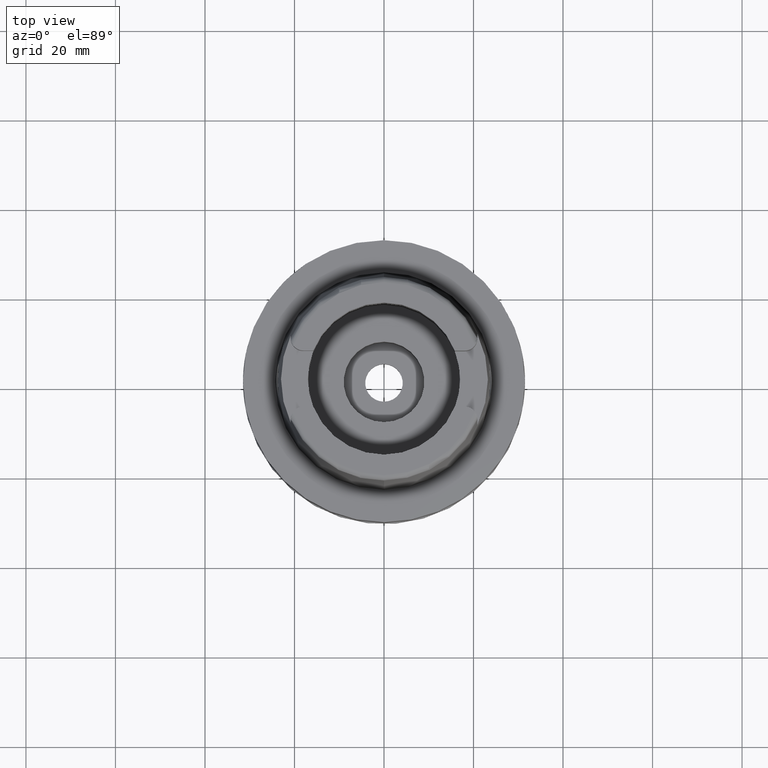
[diagram: clean part render]
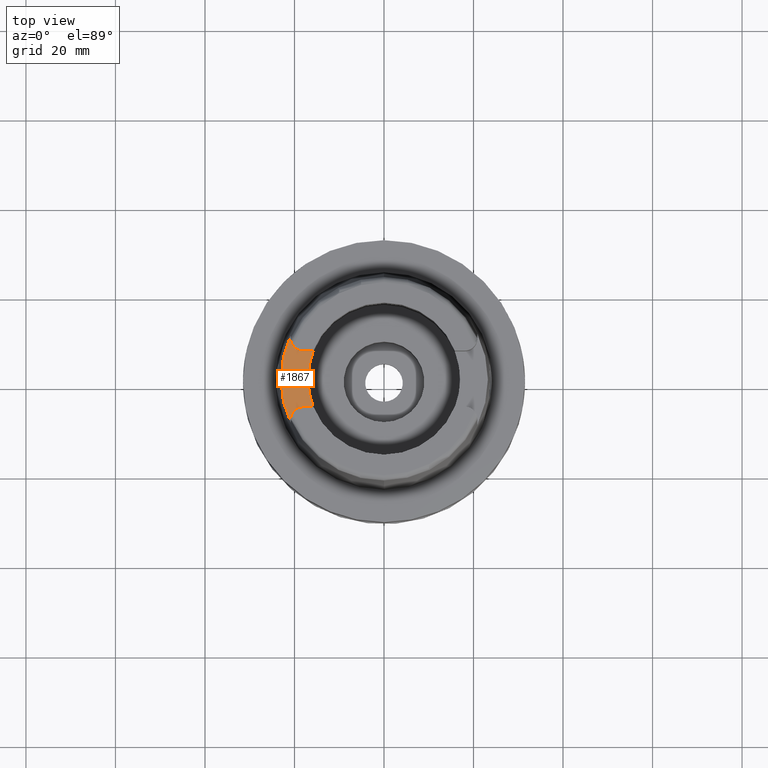
[diagram: same view with one face highlighted and labeled with its STEP entity id]
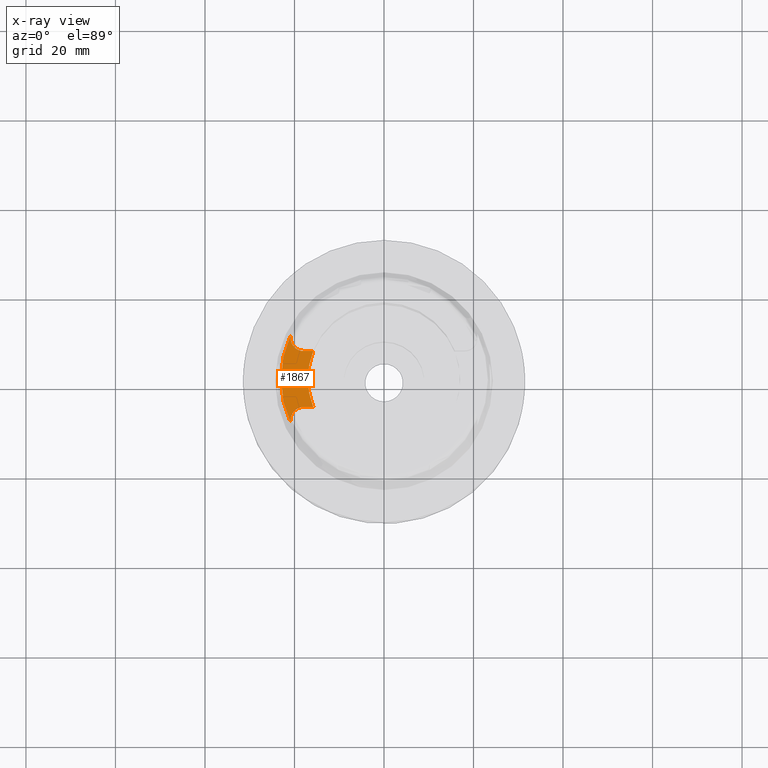
[diagram: x-ray of the same camera — body ghosted, the highlighted face saturated]
A machine part, top view. The second image highlights one B-rep face of the part: STEP entity #1867.
The next image is the same camera in x-ray: the body ghosted, the highlighted face saturated — about 0% of this face is hidden behind the body in this view.
In plain terms, the highlighted planar face has unit normal (0, 0, 1).
Its self-contained STEP definition (entity closure, byte-faithful):
#35 = DIRECTION ( 'NONE',  ( -1.000000000000000000, 8.644330667353000255E-14, 0.0000000000000000000 ) ) ;
#202 = VERTEX_POINT ( 'NONE', #2320 ) ;
#209 = VERTEX_POINT ( 'NONE', #5324 ) ;
#225 = CIRCLE ( 'NONE', #756, 23.01499170873999134 ) ;
#637 = LINE ( 'NONE', #1538, #3032 ) ;
#644 = DIRECTION ( 'NONE',  ( 0.0000000000000000000, 0.0000000000000000000, 1.000000000000000000 ) ) ;
#649 = ORIENTED_EDGE ( 'NONE', *, *, #2867, .F. ) ;
#651 = DIRECTION ( 'NONE',  ( 0.0000000000000000000, 1.000000000000000000, 0.0000000000000000000 ) ) ;
#743 = CARTESIAN_POINT ( 'NONE',  ( -15.80149043602999903, -6.270000000000000462, 26.00000000000000000 ) ) ;
#756 = AXIS2_PLACEMENT_3D ( 'NONE', #845, #3856, #1365 ) ;
#761 = CIRCLE ( 'NONE', #1112, 17.00000000000000000 ) ;
#845 = CARTESIAN_POINT ( 'NONE',  ( 0.0000000000000000000, 0.0000000000000000000, 26.00000000000000000 ) ) ;
#1005 = ORIENTED_EDGE ( 'NONE', *, *, #5099, .F. ) ;
#1078 = DIRECTION ( 'NONE',  ( -1.000000000000000000, 0.0000000000000000000, 0.0000000000000000000 ) ) ;
#1112 = AXIS2_PLACEMENT_3D ( 'NONE', #1495, #644, #4896 ) ;
#1306 = VECTOR ( 'NONE', #2836, 1000.000000000000000 ) ;
#1317 = AXIS2_PLACEMENT_3D ( 'NONE', #2329, #3140, #1078 ) ;
#1365 = DIRECTION ( 'NONE',  ( -0.9068002397791221636, -0.4215605829967106200, 0.0000000000000000000 ) ) ;
#1439 = ORIENTED_EDGE ( 'NONE', *, *, #4825, .F. ) ;
#1481 = CARTESIAN_POINT ( 'NONE',  ( -20.87000000000000099, 9.150000000000000355, 26.00000000000000000 ) ) ;
#1495 = CARTESIAN_POINT ( 'NONE',  ( 0.0000000000000000000, 0.0000000000000000000, 26.00000000000000000 ) ) ;
#1538 = CARTESIAN_POINT ( 'NONE',  ( -17.98999999999999844, 6.270000000000000462, 26.00000000000000000 ) ) ;
#1615 = LINE ( 'NONE', #4990, #1306 ) ;
#1651 = CARTESIAN_POINT ( 'NONE',  ( 0.0000000000000000000, 0.0000000000000000000, 26.00000000000000000 ) ) ;
#1698 = DIRECTION ( 'NONE',  ( 1.239823711411039370E-06, -0.9999999999992315036, -3.860130687255118314E-14 ) ) ;
#1847 = ORIENTED_EDGE ( 'NONE', *, *, #2172, .F. ) ;
#1867 = ADVANCED_FACE ( 'NONE', ( #5057 ), #4086, .T. ) ;
#1922 = CIRCLE ( 'NONE', #3413, 2.880000000000000782 ) ;
#1924 = VERTEX_POINT ( 'NONE', #4537 ) ;
#1991 = DIRECTION ( 'NONE',  ( 1.000000000000000000, 0.0000000000000000000, 0.0000000000000000000 ) ) ;
#2172 = EDGE_CURVE ( 'NONE', #202, #209, #637, .T. ) ;
#2267 = VERTEX_POINT ( 'NONE', #743 ) ;
#2320 = CARTESIAN_POINT ( 'NONE',  ( -17.98999999999999844, 6.270000000000000462, 26.00000000000000000 ) ) ;
#2329 = CARTESIAN_POINT ( 'NONE',  ( -17.98999999999999844, 9.150000000000000355, 26.00000000000000000 ) ) ;
#2379 = VERTEX_POINT ( 'NONE', #4533 ) ;
#2417 = ORIENTED_EDGE ( 'NONE', *, *, #3837, .F. ) ;
#2424 = EDGE_CURVE ( 'NONE', #2379, #4493, #225, .T. ) ;
#2468 = EDGE_CURVE ( 'NONE', #3335, #2379, #2996, .T. ) ;
#2540 = VERTEX_POINT ( 'NONE', #1481 ) ;
#2566 = CARTESIAN_POINT ( 'NONE',  ( -15.80149043602999903, -6.270000000000000462, 26.00000000000000000 ) ) ;
#2708 = EDGE_CURVE ( 'NONE', #2267, #1924, #3819, .T. ) ;
#2741 = CIRCLE ( 'NONE', #1317, 2.880000000000000782 ) ;
#2836 = DIRECTION ( 'NONE',  ( 5.336846542900780513E-06, -0.9999999999857590582, 3.860251871643844625E-14 ) ) ;
#2867 = EDGE_CURVE ( 'NONE', #209, #2267, #761, .T. ) ;
#2870 = VECTOR ( 'NONE', #1698, 999.9999999999998863 ) ;
#2996 = LINE ( 'NONE', #4301, #2870 ) ;
#3032 = VECTOR ( 'NONE', #4029, 1000.000000000000000 ) ;
#3104 = CARTESIAN_POINT ( 'NONE',  ( -17.98999999999999844, -9.150000000000000355, 26.00000000000000000 ) ) ;
#3140 = DIRECTION ( 'NONE',  ( 0.0000000000000000000, 0.0000000000000000000, 1.000000000000000000 ) ) ;
#3335 = VERTEX_POINT ( 'NONE', #4860 ) ;
#3343 = DIRECTION ( 'NONE',  ( 0.0000000000000000000, 0.0000000000000000000, 1.000000000000000000 ) ) ;
#3413 = AXIS2_PLACEMENT_3D ( 'NONE', #3104, #4797, #651 ) ;
#3428 = ORIENTED_EDGE ( 'NONE', *, *, #2424, .F. ) ;
#3819 = LINE ( 'NONE', #2566, #3924 ) ;
#3837 = EDGE_CURVE ( 'NONE', #1924, #3335, #1922, .T. ) ;
#3856 = DIRECTION ( 'NONE',  ( 0.0000000000000000000, 0.0000000000000000000, -1.000000000000000000 ) ) ;
#3924 = VECTOR ( 'NONE', #35, 1000.000000000000000 ) ;
#4029 = DIRECTION ( 'NONE',  ( 1.000000000000000000, 8.644330667353000255E-14, 0.0000000000000000000 ) ) ;
#4086 = PLANE ( 'NONE',  #5346 ) ;
#4095 = EDGE_LOOP ( 'NONE', ( #1847, #1439, #1005, #3428, #5359, #2417, #4605, #649 ) ) ;
#4301 = CARTESIAN_POINT ( 'NONE',  ( -20.87000000000000099, -9.150000000000000355, 26.00000000000000000 ) ) ;
#4461 = CARTESIAN_POINT ( 'NONE',  ( -20.87000000000000099, 9.702213322398998585, 26.00000000000000000 ) ) ;
#4493 = VERTEX_POINT ( 'NONE', #4461 ) ;
#4533 = CARTESIAN_POINT ( 'NONE',  ( -20.86999931535000385, -9.702216590572000143, 26.00000000000000000 ) ) ;
#4537 = CARTESIAN_POINT ( 'NONE',  ( -17.98999999999999844, -6.270000000000000462, 26.00000000000000000 ) ) ;
#4605 = ORIENTED_EDGE ( 'NONE', *, *, #2708, .F. ) ;
#4797 = DIRECTION ( 'NONE',  ( 0.0000000000000000000, 0.0000000000000000000, 1.000000000000000000 ) ) ;
#4825 = EDGE_CURVE ( 'NONE', #2540, #202, #2741, .T. ) ;
#4860 = CARTESIAN_POINT ( 'NONE',  ( -20.87000000000000099, -9.150000000000000355, 26.00000000000000000 ) ) ;
#4896 = DIRECTION ( 'NONE',  ( -0.9294994374136111848, 0.3688235294118045182, 0.0000000000000000000 ) ) ;
#4990 = CARTESIAN_POINT ( 'NONE',  ( -20.87000294699999969, 9.702199254901000103, 26.00000000000000000 ) ) ;
#5057 = FACE_OUTER_BOUND ( 'NONE', #4095, .T. ) ;
#5099 = EDGE_CURVE ( 'NONE', #4493, #2540, #1615, .T. ) ;
#5324 = CARTESIAN_POINT ( 'NONE',  ( -15.80149043602999903, 6.270000000000000462, 26.00000000000000000 ) ) ;
#5346 = AXIS2_PLACEMENT_3D ( 'NONE', #1651, #3343, #1991 ) ;
#5359 = ORIENTED_EDGE ( 'NONE', *, *, #2468, .F. ) ;